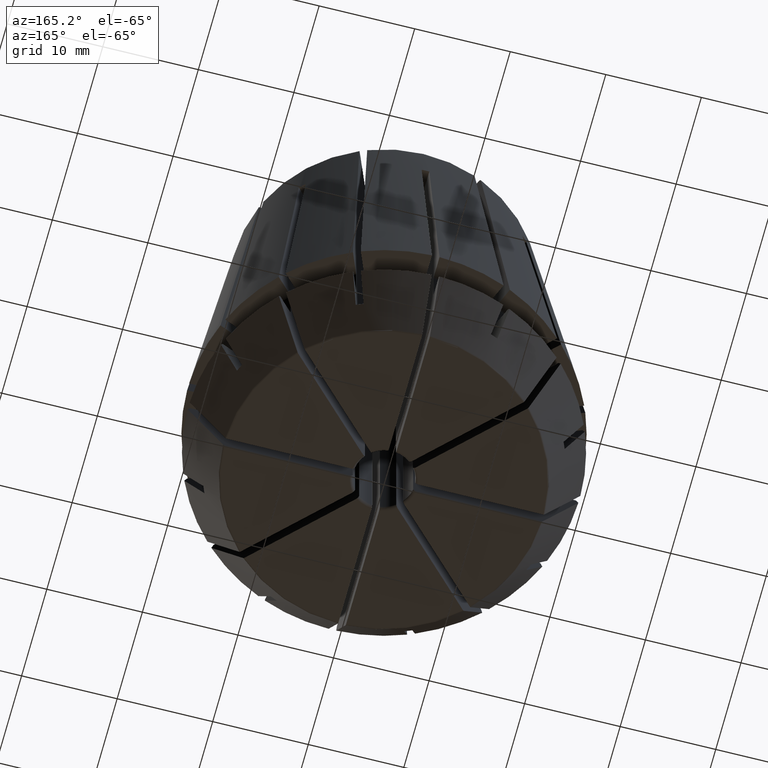
[diagram: clean part render]
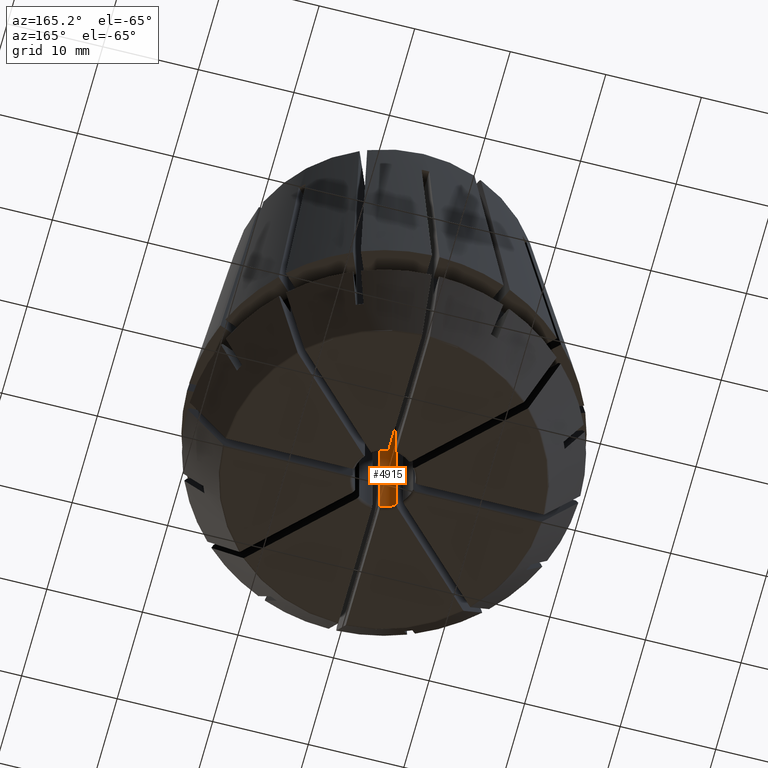
[diagram: same view with one face highlighted and labeled with its STEP entity id]
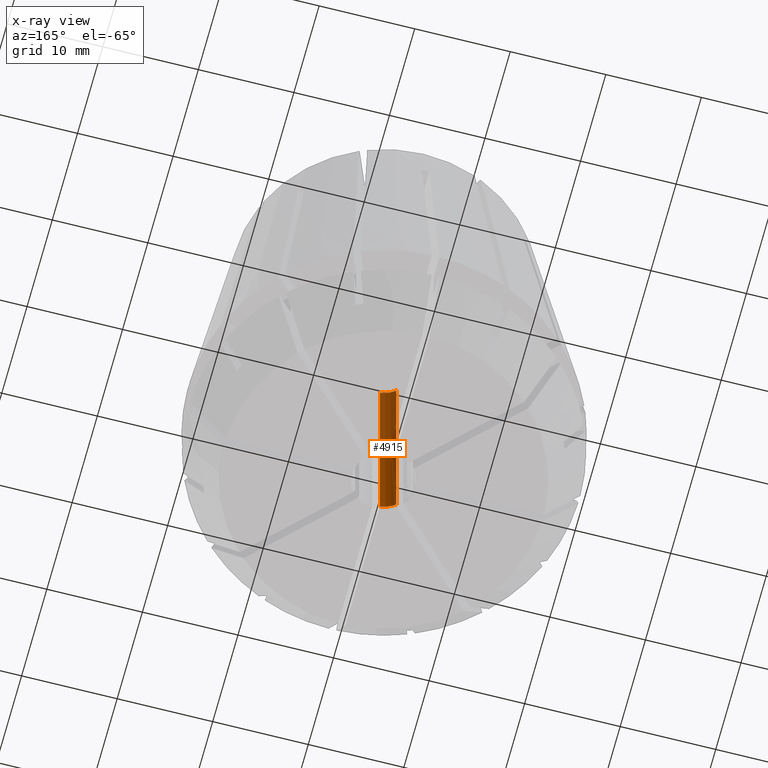
[diagram: x-ray of the same camera — body ghosted, the highlighted face saturated]
A machine part, auxiliary view. The second image highlights one B-rep face of the part: STEP entity #4915.
The next image is the same camera in x-ray: the body ghosted, the highlighted face saturated — about 46% of this face is hidden behind the body in this view.
In plain terms, the highlighted cylindrical surface (edge-blend (fillet) strip) has radius 3.175 mm, axis along (0, 0, -1).
Its self-contained STEP definition (entity closure, byte-faithful):
#128=LINE('',#7348,#424);
#129=LINE('',#7350,#425);
#424=VECTOR('',#5847,1000.);
#425=VECTOR('',#5848,1000.);
#718=CYLINDRICAL_SURFACE('',#5232,3.175);
#843=CIRCLE('',#5231,3.175);
#844=CIRCLE('',#5233,3.175);
#1160=ORIENTED_EDGE('',*,*,#2772,.T.);
#1161=ORIENTED_EDGE('',*,*,#2771,.T.);
#1162=ORIENTED_EDGE('',*,*,#2773,.F.);
#1163=ORIENTED_EDGE('',*,*,#2774,.T.);
#2771=EDGE_CURVE('',#3573,#3575,#843,.T.);
#2772=EDGE_CURVE('',#3576,#3573,#128,.T.);
#2773=EDGE_CURVE('',#3577,#3575,#129,.T.);
#2774=EDGE_CURVE('',#3577,#3576,#844,.T.);
#3573=VERTEX_POINT('',#7341);
#3575=VERTEX_POINT('',#7345);
#3576=VERTEX_POINT('',#7349);
#3577=VERTEX_POINT('',#7351);
#4299=EDGE_LOOP('',(#1160,#1161,#1162,#1163));
#4571=FACE_BOUND('',#4299,.T.);
#4915=ADVANCED_FACE('',(#4571),#718,.F.);
#5231=AXIS2_PLACEMENT_3D('',#7346,#5843,#5844);
#5232=AXIS2_PLACEMENT_3D('',#7347,#5845,#5846);
#5233=AXIS2_PLACEMENT_3D('',#7352,#5849,#5850);
#5843=DIRECTION('',(0.,0.,1.));
#5844=DIRECTION('',(1.,0.,0.));
#5845=DIRECTION('',(0.,0.,-1.));
#5846=DIRECTION('',(1.,0.,0.));
#5847=DIRECTION('',(0.,0.,1.));
#5848=DIRECTION('',(0.,0.,1.));
#5849=DIRECTION('',(0.,0.,-1.));
#5850=DIRECTION('',(-1.,0.,0.));
#7341=CARTESIAN_POINT('',(-1.94433318987347,-2.5100186148227,27.8535898384862));
#7345=CARTESIAN_POINT('',(-0.4,-3.1497023668912,27.8535898384862));
#7346=CARTESIAN_POINT('',(0.,0.,27.8535898384862));
#7347=CARTESIAN_POINT('',(0.,0.,-57.));
#7348=CARTESIAN_POINT('',(-1.94433318987347,-2.5100186148227,-57.));
#7349=CARTESIAN_POINT('',(-1.94433318987305,-2.51001861482229,0.599999999999872));
#7350=CARTESIAN_POINT('',(-0.4,-3.1497023668912,-57.));
#7351=CARTESIAN_POINT('',(-0.400000000000002,-3.1497023668912,0.599999999999981));
#7352=CARTESIAN_POINT('',(0.,0.,0.6));